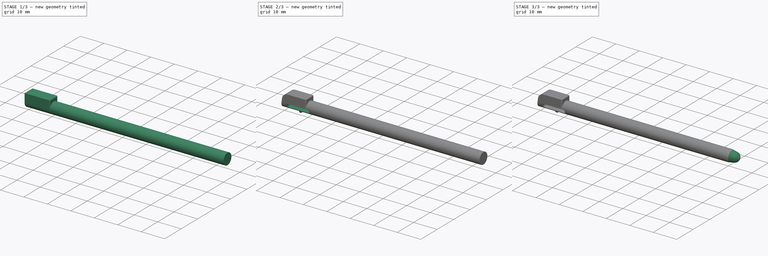
[diagram: build sequence overview — one tinted view per stage of 3, left to right]
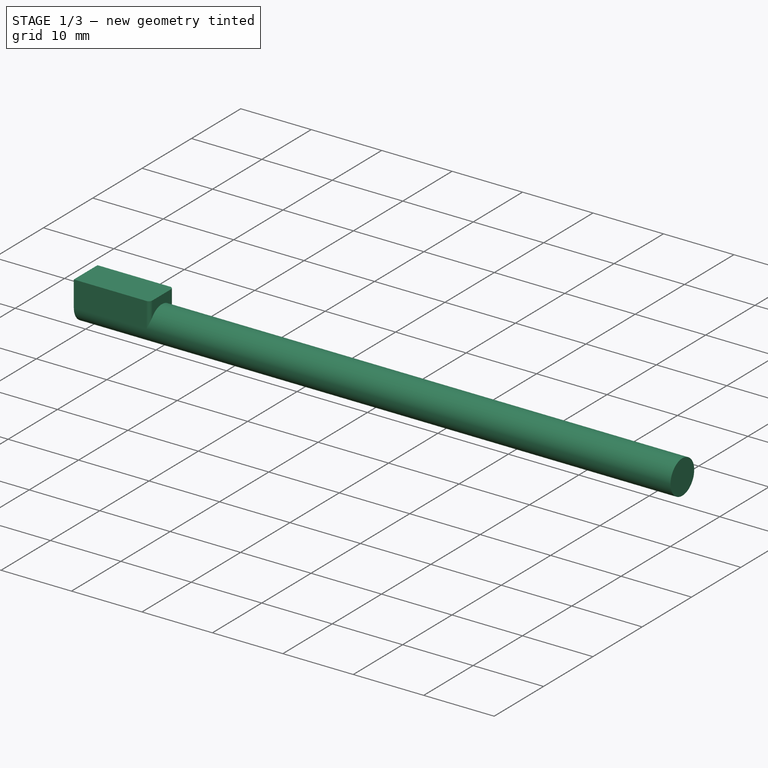
[diagram: stage 1 of 3 — iso view after this stage's code; geometry added in this stage tinted green]
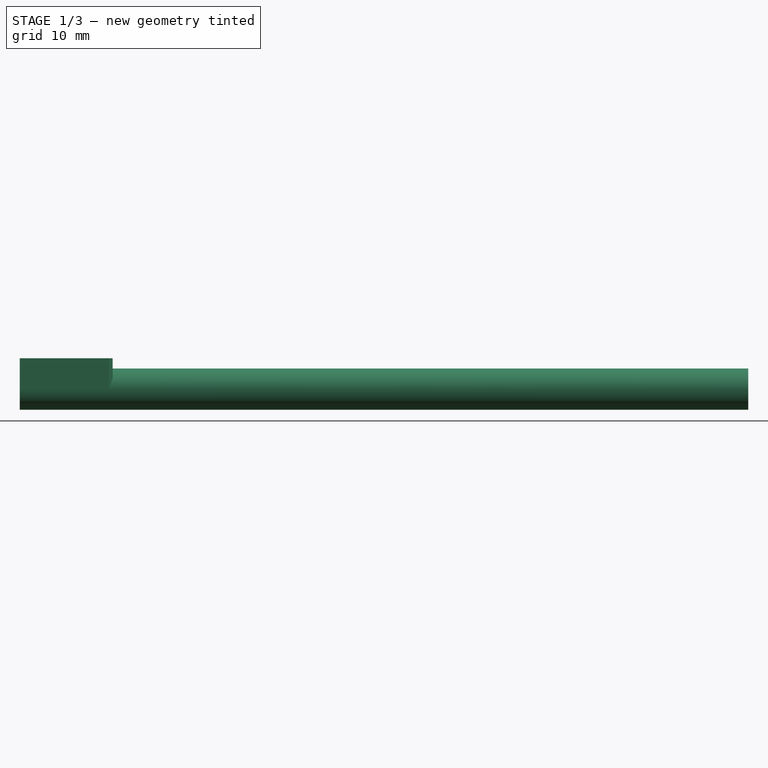
[diagram: stage 1 of 3 — front view after this stage's code; geometry added in this stage tinted green]
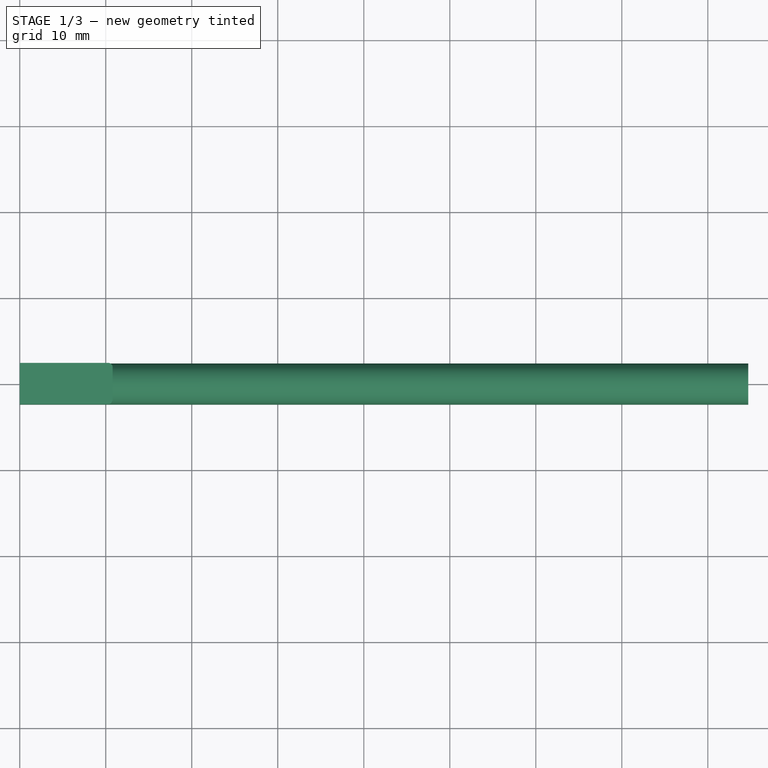
[diagram: stage 1 of 3 — top view after this stage's code; geometry added in this stage tinted green]
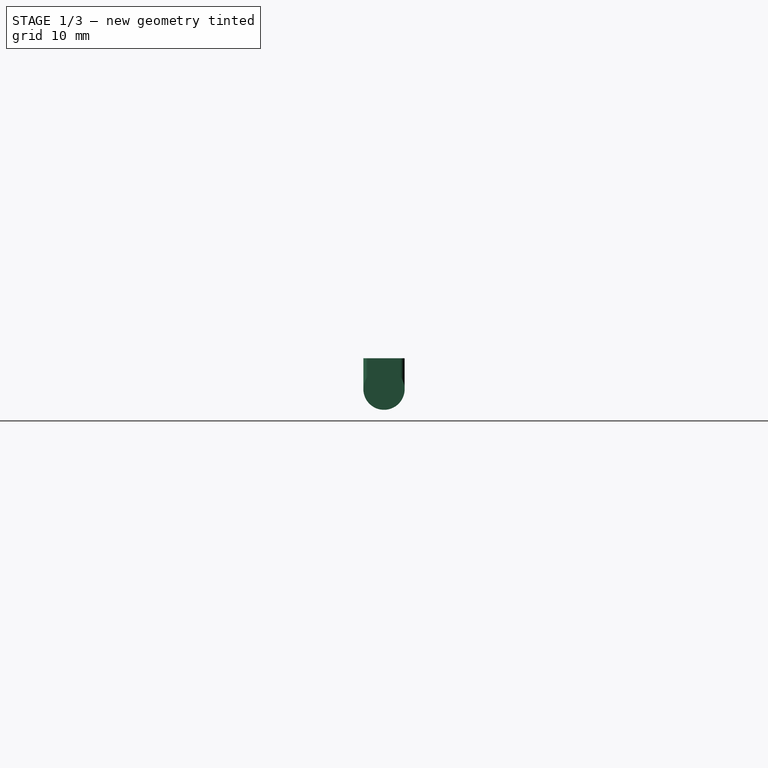
[diagram: stage 1 of 3 — right view after this stage's code; geometry added in this stage tinted green]
FCSTD DOCUMENT  (FreeCAD 1.0R39109 (Git))
Label: DSi Stylus
License: Creative Commons Attribution-NonCommercial-ShareAlike
LicenseURL: http://creativecommons.org/licenses/by-nc-sa/4.0/
objects: Sketcher::SketchObject×7, PartDesign::Pad×3, PartDesign::Pocket×3, PartDesign::Groove×1, PartDesign::Body×1
note: 36 computed .brp shape members not serialized (recipe doc carries the construction recipe); baked Part::Feature solids carry a one-line shape summary decoded from their .brp

FEATURE [Sketcher::SketchObject] Sketch
  ArcFitTolerance = 0
  AttachmentSupport = -> [YZ_Plane]
  FullyConstrained = true
  MakeInternals = false
  MapMode = 5
  Placement = pos=(0,0,0) rot=(0.57735,0.57735,0.57735;2.0944rad)
  sketch-geometry (1):
    g0: Circle CenterX=0 CenterY=0 CenterZ=0 NormalX=0 NormalY=0 NormalZ=1 AngleXU=0 Radius=2.4
  constraints (2):
    c: Coincident(g0,g-1)
    c: Diameter(g0) = 4.8
FEATURE [PartDesign::Pad] Pad
  Direction = (1,0,0)
  Length = 84.7
  Length2 = 10
  Placement = pos=(0,0,0) rot=(0.57735,0.57735,0.57735;2.0944rad)
  Profile = -> Sketch
  ReferenceAxis = -> Sketch [N_Axis]
  Suppressed = false
  Type = 0
FEATURE [Sketcher::SketchObject] Sketch001
  ArcFitTolerance = 0
  AttachmentSupport = -> [XY_Plane]
  ExternalGeometry = -> [Pad]
  FullyConstrained = true
  MakeInternals = false
  MapMode = 5
  sketch-geometry (8):
    g0: LineSegment StartX=5e-16 StartY=2.4 StartZ=0 EndX=10.3 EndY=2.4 EndZ=0
    g1: LineSegment StartX=10.8 StartY=1.9 StartZ=0 EndX=10.8 EndY=-1.9 EndZ=0
    g2: LineSegment StartX=10.3 StartY=-2.4 StartZ=0 EndX=0 EndY=-2.4 EndZ=0
    g3: LineSegment StartX=0 StartY=-2.4 StartZ=0 EndX=5e-16 EndY=2.4 EndZ=0
    g4: ArcOfCircle CenterX=10.3 CenterY=1.9 CenterZ=0 NormalX=0 NormalY=0 NormalZ=1 AngleXU=0 Radius=0.5 StartAngle=0 EndAngle=1.5708
    g5: ArcOfCircle CenterX=10.3 CenterY=-1.9 CenterZ=0 NormalX=0 NormalY=0 NormalZ=1 AngleXU=0 Radius=0.5 StartAngle=4.71239 EndAngle=6.28319
    g6: LineSegment [constr] StartX=5e-16 StartY=2.4 StartZ=0 EndX=10.8 EndY=2.4 EndZ=0
    g7: LineSegment [constr] StartX=10.8 StartY=1.9 StartZ=0 EndX=10.8 EndY=2.4 EndZ=0
  constraints (19):
    c: Coincident(g2,g3)
    c: Coincident(g3,g0)
    c: Horizontal(g0)
    c: Horizontal(g2)
    c: Vertical(g1)
    c: Coincident(g0,g-3)
    c: Coincident(g-3,g2)
    c: Tangent(g0,g4) = 1.5708
    c: Tangent(g1,g4) = 1.5708
    c: Tangent(g1,g5) = 1.5708
    c: Tangent(g2,g5) = 1.5708
    c: Coincident(g6,g0)
    c: Horizontal(g6)
    c: Coincident(g7,g1)
    c: Coincident(g7,g6)
    c: Vertical(g7)
    c: Distance(g6) = 10.8
    c: Equal(g4,g5)
    c: Radius(g4) = 0.5
FEATURE [PartDesign::Pad] Pad001
  BaseFeature = -> Pad
  Direction = (0,0,1)
  Length = 3.6
  Length2 = 10
  Placement = pos=(0,0,0) rot=(0.57735,0.57735,0.57735;2.0944rad)
  Profile = -> Sketch001
  ReferenceAxis = -> Sketch001 [N_Axis]
  Suppressed = false
  Type = 0
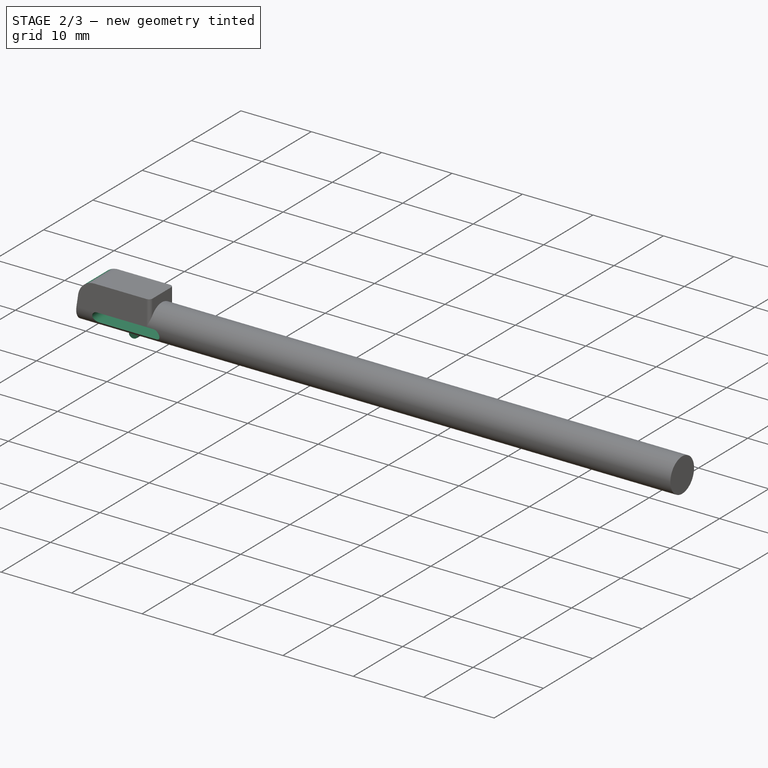
[diagram: stage 2 of 3 — iso view after this stage's code; geometry added in this stage tinted green]
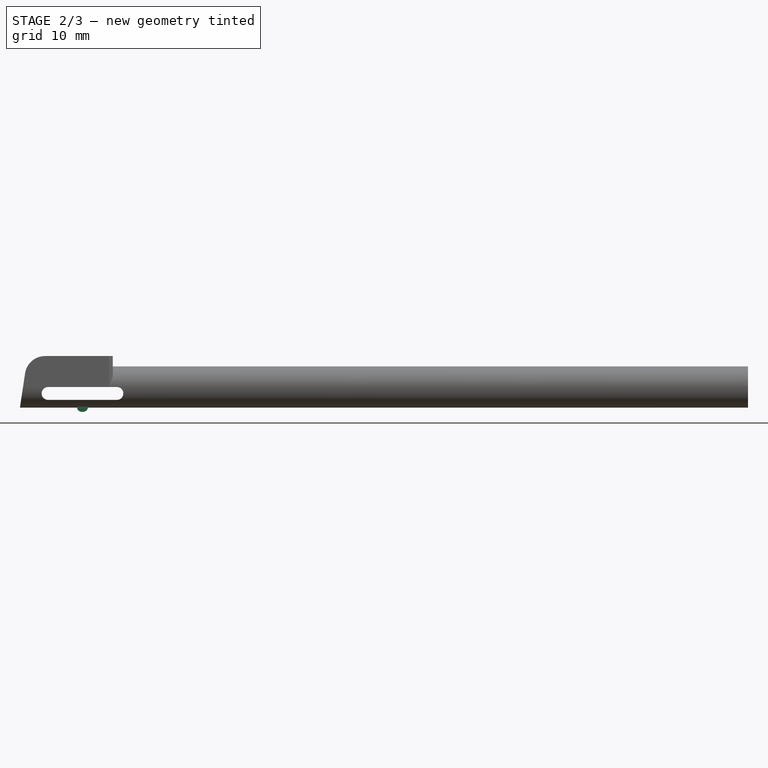
[diagram: stage 2 of 3 — front view after this stage's code; geometry added in this stage tinted green]
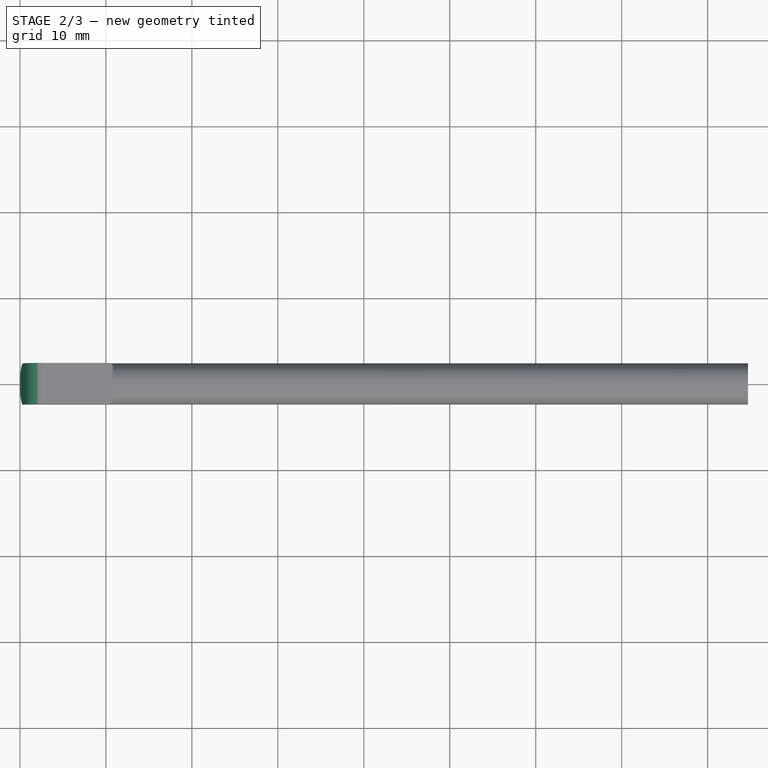
[diagram: stage 2 of 3 — top view after this stage's code; geometry added in this stage tinted green]
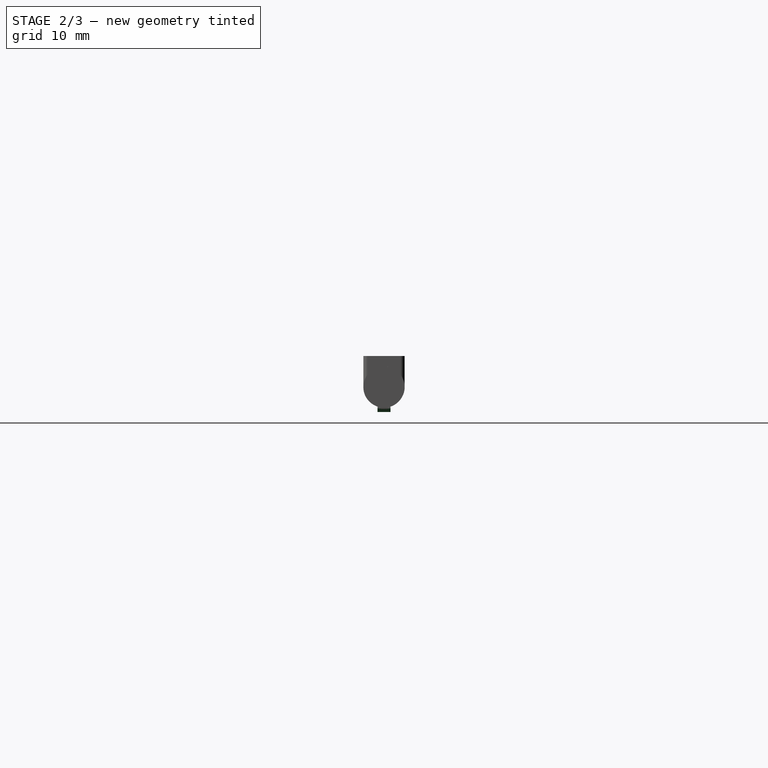
[diagram: stage 2 of 3 — right view after this stage's code; geometry added in this stage tinted green]
FEATURE [Sketcher::SketchObject] Sketch002
  ArcFitTolerance = 0
  AttachmentSupport = -> [Pad001]
  ExternalGeometry = -> [Pad001]
  FullyConstrained = true
  MakeInternals = false
  MapMode = 5
  Placement = pos=(-5e-16,-2.4,3e-16) rot=(0.57735,0.57735,-0.57735;2.0944rad)
  sketch-geometry (10):
    g0: LineSegment StartX=2.4 StartY=2.1e-15 StartZ=0 EndX=-1.6 EndY=0.6 EndZ=0
    g1: LineSegment [constr] StartX=-3.6 StartY=0 StartZ=0 EndX=-1.6 EndY=0 EndZ=0
    g2: LineSegment [constr] StartX=-1.6 StartY=0 StartZ=0 EndX=-1.6 EndY=0.6 EndZ=0
    g3: LineSegment [constr] StartX=-1.6 StartY=0.6 StartZ=0 EndX=-3.6 EndY=0.6 EndZ=0
    g4: LineSegment [constr] StartX=-3.6 StartY=0.6 StartZ=0 EndX=-3.6 EndY=0 EndZ=0
    g5: ArcOfCircle CenterX=-1.25164 CenterY=2.92237 CenterZ=0 NormalX=0 NormalY=0 NormalZ=1 AngleXU=0 Radius=2.34836 StartAngle=3.14159 EndAngle=4.5635
    g6: LineSegment StartX=-3.6 StartY=2.92237 StartZ=0 EndX=-4.6 EndY=2.92237 EndZ=0
    g7: LineSegment StartX=-4.6 StartY=2.92237 StartZ=0 EndX=-4.6 EndY=-1 EndZ=0
    g8: LineSegment StartX=-4.6 StartY=-1 StartZ=0 EndX=2.4 EndY=-1 EndZ=0
    g9: LineSegment StartX=2.4 StartY=-1 StartZ=0 EndX=2.4 EndY=2.1e-15 EndZ=0
  constraints (26):
    c: Coincident(g0,g-3)
    c: Coincident(g1,g2)
    c: Coincident(g2,g3)
    c: Coincident(g3,g4)
    c: Coincident(g4,g1)
    c: Horizontal(g1)
    c: Horizontal(g3)
    c: Vertical(g2)
    c: Vertical(g4)
    c: Coincident(g1,g-4)
    c: Coincident(g0,g2)
    c: Tangent(g5,g-4) = -1.5708
    c: Tangent(g5,g0) = 1.5708
    c: Distance(g4) = 0.6
    c: Distance(g1) = 2
    c: Coincident(g6,g5)
    c: Horizontal(g6)
    c: Coincident(g7,g6)
    c: Vertical(g7)
    c: Coincident(g8,g7)
    c: Horizontal(g8)
    c: Coincident(g9,g8)
    c: Coincident(g9,g0)
    c: Vertical(g9)
    c: Distance(g6) = 1
    c: Equal(g6,g9)
FEATURE [PartDesign::Pocket] Pocket
  BaseFeature = -> Pad001
  Direction = (0,1,0)
  Length = 5
  Length2 = 5
  Placement = pos=(0,0,0) rot=(0.57735,0.57735,0.57735;2.0944rad)
  Profile = -> Sketch002
  ReferenceAxis = -> Sketch002 [N_Axis]
  Suppressed = false
  Type = 0
FEATURE [Sketcher::SketchObject] Sketch003
  ArcFitTolerance = 0
  AttachmentSupport = -> [XZ_Plane]
  ExternalGeometry = -> [Pocket]
  FullyConstrained = true
  MakeInternals = false
  MapMode = 5
  Placement = pos=(0,0,0) rot=(1,0,0;1.5708rad)
  sketch-geometry (9):
    g0: LineSegment [constr] StartX=0 StartY=0 StartZ=0 EndX=7.9 EndY=0 EndZ=0
    g1: LineSegment [constr] StartX=7.9 StartY=0 StartZ=0 EndX=7.9 EndY=-2.4 EndZ=0
    g2: LineSegment [constr] StartX=7.9 StartY=-2.4 StartZ=0 EndX=6.65 EndY=-2.4 EndZ=0
    g3: LineSegment [constr] StartX=6.65 StartY=-2.4 StartZ=0 EndX=0 EndY=-2.4 EndZ=0
    g4: Ellipse CenterX=7.275 CenterY=-2.4 CenterZ=0 NormalX=0 NormalY=0 NormalZ=1 MajorRadius=0.625 MinorRadius=0.5 AngleXU=1.2e-15
    g5: LineSegment [constr] StartX=7.9 StartY=-2.4 StartZ=0 EndX=6.65 EndY=-2.4 EndZ=0
    g6: LineSegment [constr] StartX=7.275 StartY=-1.9 StartZ=0 EndX=7.275 EndY=-2.9 EndZ=0
    g7: GeomPoint [constr] X=7.65 Y=-2.4 Z=0
    g8: GeomPoint [constr] X=6.9 Y=-2.4 Z=0
  constraints (15):
    c: Coincident(g0,g-1)
    c: PointOnObject(g0,g-1)
    c: Coincident(g1,g0)
    c: Vertical(g1)
    c: Coincident(g2,g1)
    c: Horizontal(g2)
    c: Coincident(g3,g2)
    c: Coincident(g3,g-3)
    c: Horizontal(g3)
    c: InternalAlignment(g5-g8 -> g4) x4
    c: Distance(g6) = 1
    c: Symmetric(g2,g1,g4)
    c: Coincident(g5,g1)
    c: Distance(g2) = 1.25
    c: Distance(g0) = 7.9
FEATURE [PartDesign::Pad] Pad002
  BaseFeature = -> Pocket
  Direction = (0,-1,2e-16)
  Length = 0.75
  Length2 = 0.75
  Placement = pos=(0,0,0) rot=(0.57735,0.57735,0.57735;2.0944rad)
  Profile = -> Sketch003
  ReferenceAxis = -> Sketch003 [N_Axis]
  Suppressed = false
  Type = 4
FEATURE [Sketcher::SketchObject] Sketch004
  ArcFitTolerance = 0
  AttachmentSupport = -> [Pad002]
  ExternalGeometry = -> [Pad002]
  FullyConstrained = true
  MakeInternals = false
  MapMode = 5
  Placement = pos=(-5e-16,-2.4,1.9e-15) rot=(0.57735,0.57735,-0.57735;2.0944rad)
  sketch-geometry (6):
    g0: ArcOfCircle CenterX=0.75 CenterY=3.275 CenterZ=0 NormalX=0 NormalY=0 NormalZ=1 AngleXU=0 Radius=0.75 StartAngle=3.14159 EndAngle=6.28319
    g1: ArcOfCircle CenterX=0.75 CenterY=11.275 CenterZ=0 NormalX=0 NormalY=0 NormalZ=1 AngleXU=0 Radius=0.75 StartAngle=-5.68e-14 EndAngle=3.14159
    g2: LineSegment StartX=1.5 StartY=3.275 StartZ=0 EndX=1.5 EndY=11.275 EndZ=0
    g3: LineSegment StartX=-1.2e-15 StartY=11.275 StartZ=0 EndX=-1.1e-15 EndY=3.275 EndZ=0
    g4: LineSegment [constr] StartX=2.4 StartY=7.275 StartZ=0 EndX=1.5 EndY=7.275 EndZ=0
    g5: LineSegment [constr] StartX=-1.1e-15 StartY=3.275 StartZ=0 EndX=1.5 EndY=3.275 EndZ=0
  constraints (14):
    c: Tangent(g0,g2) = -1.5708
    c: Tangent(g2,g1) = -1.5708
    c: Tangent(g1,g3) = -1.5708
    c: Tangent(g3,g0) = -1.5708
    c: Equal(g0,g1)
    c: Vertical(g2)
    c: Coincident(g4,g-4)
    c: Horizontal(g4)
    c: Symmetric(g1,g0,g4)
    c: PointOnObject(g0,g-3)
    c: Coincident(g5,g0)
    c: Coincident(g5,g0)
    c: Distance(g5) = 1.5
    c: Distance(g2) = 8
FEATURE [PartDesign::Pocket] Pocket001
  BaseFeature = -> Pad002
  Direction = (0,1,0)
  Length = 10
  Length2 = 5
  Placement = pos=(0,0,0) rot=(0.57735,0.57735,0.57735;2.0944rad)
  Profile = -> Sketch004
  ReferenceAxis = -> Sketch004 [N_Axis]
  Suppressed = false
  Type = 0
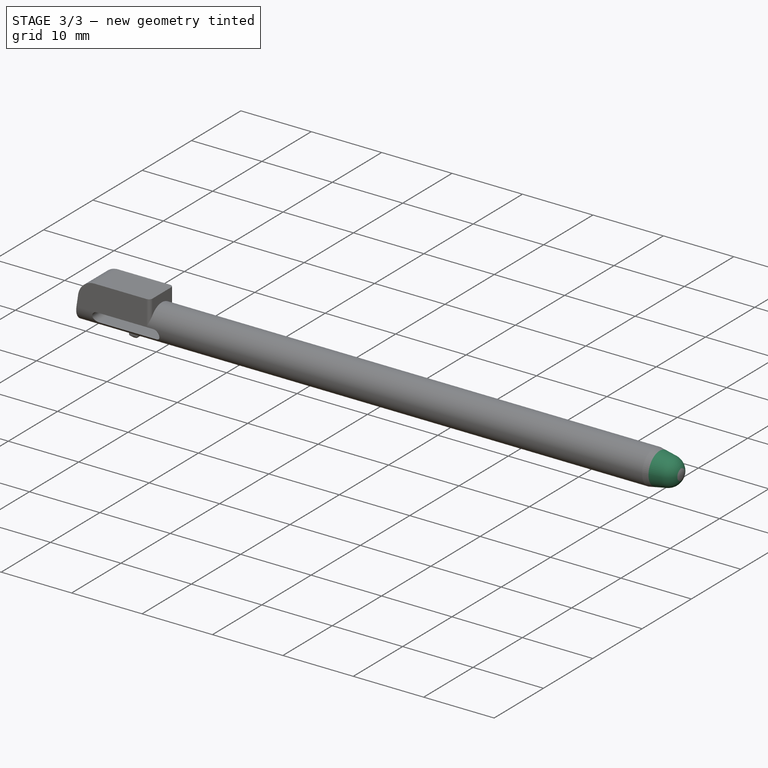
[diagram: stage 3 of 3 — iso view after this stage's code; geometry added in this stage tinted green]
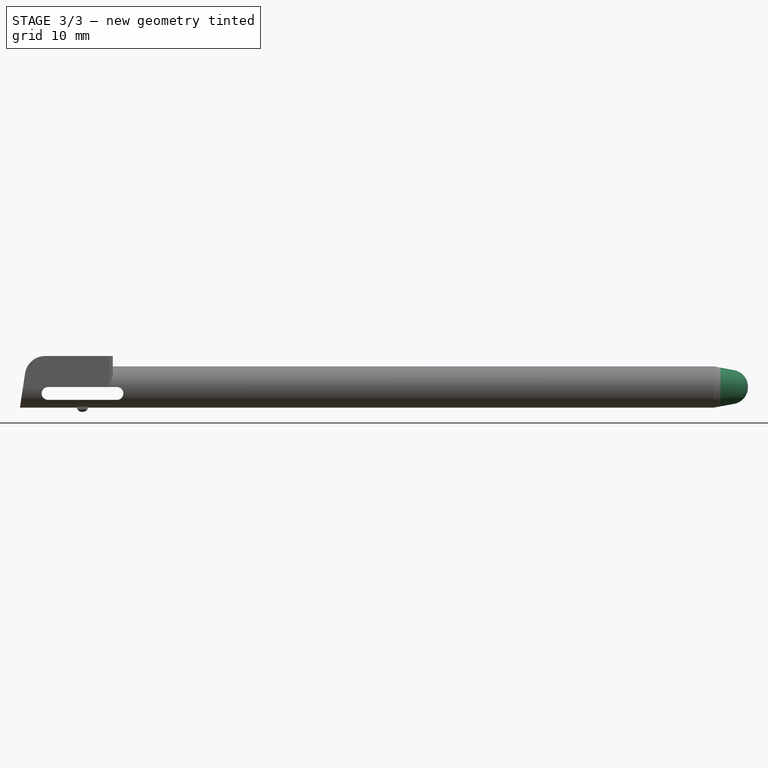
[diagram: stage 3 of 3 — front view after this stage's code; geometry added in this stage tinted green]
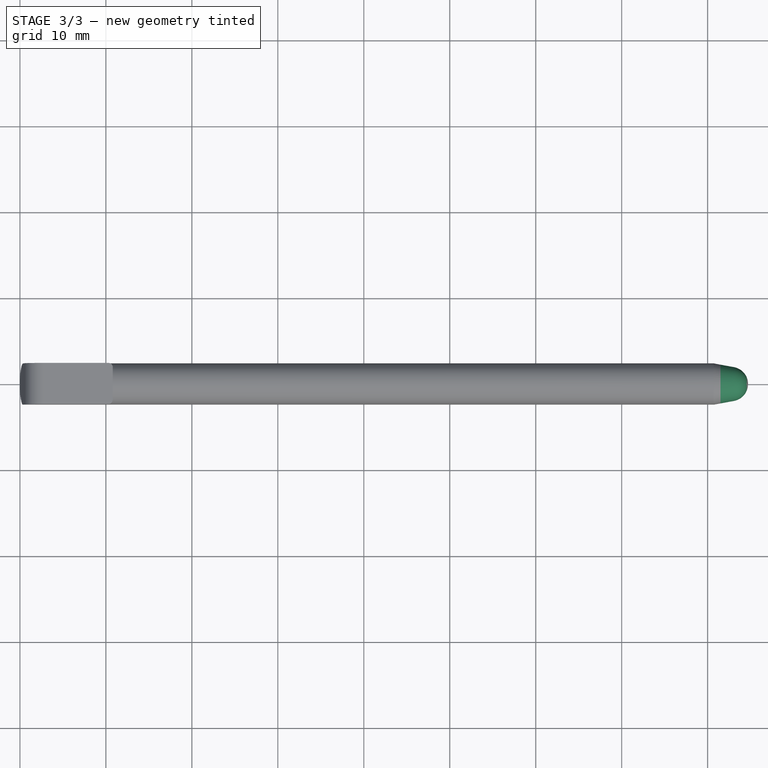
[diagram: stage 3 of 3 — top view after this stage's code; geometry added in this stage tinted green]
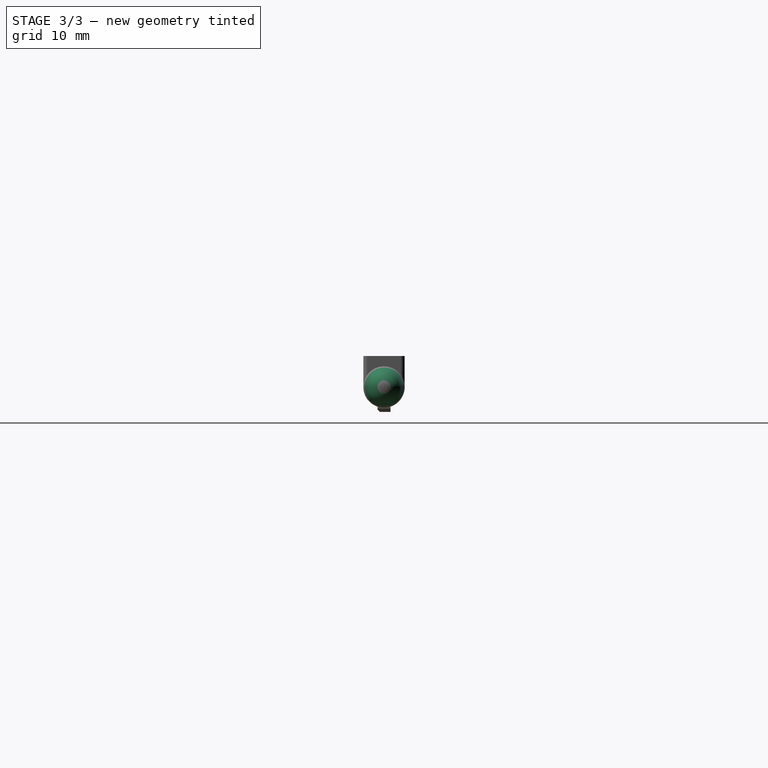
[diagram: stage 3 of 3 — right view after this stage's code; geometry added in this stage tinted green]
FEATURE [Sketcher::SketchObject] Sketch005
  ArcFitTolerance = 0
  AttachmentSupport = -> [XZ_Plane]
  ExternalGeometry = -> [Pocket001]
  FullyConstrained = true
  MakeInternals = false
  MapMode = 5
  Placement = pos=(0,0,0) rot=(1,0,0;1.5708rad)
  sketch-geometry (6):
    g0: ArcOfCircle CenterX=82.7 CenterY=5.0452e-07 CenterZ=0 NormalX=0 NormalY=0 NormalZ=1 AngleXU=0 Radius=2 StartAngle=6.28319 EndAngle=7.67266
    g1: LineSegment StartX=83.0607 StartY=1.96721 StartZ=0 EndX=80.7 EndY=2.4 EndZ=0
    g2: LineSegment StartX=80.7 StartY=2.4 StartZ=0 EndX=84.7 EndY=2.4 EndZ=0
    g3: LineSegment StartX=84.7 StartY=2.4 StartZ=0 EndX=85.7 EndY=2.4 EndZ=0
    g4: LineSegment StartX=85.7 StartY=2.4 StartZ=0 EndX=85.7 EndY=7.02e-14 EndZ=0
    g5: LineSegment StartX=85.7 StartY=7.01e-14 StartZ=0 EndX=84.7 EndY=7.01e-14 EndZ=0
  constraints (16):
    c: Symmetric(g-3,g-3,g0)
    c: Tangent(g0,g-3)
    c: Coincident(g2,g1)
    c: Coincident(g2,g-3)
    c: Horizontal(g2)
    c: Tangent(g1,g0) = -1.5708
    c: Distance(g2) = 4
    c: Diameter(g0) = 4
    c: Coincident(g3,g2)
    c: Horizontal(g3)
    c: Coincident(g4,g3)
    c: Vertical(g4)
    c: Coincident(g5,g4)
    c: Coincident(g5,g0)
    c: Horizontal(g5)
    c: Distance(g3) = 1
FEATURE [PartDesign::Groove] Groove
  Angle = 360
  Angle2 = 60
  Axis = (1,0,0)
  Base = (0,0,0)
  BaseFeature = -> Pocket001
  Placement = pos=(0,0,0) rot=(0.57735,0.57735,0.57735;2.0944rad)
  Profile = -> Sketch005
  ReferenceAxis = -> Sketch005 [H_Axis]
  Refine = true
  Reversed = true
  Suppressed = false
  Type = 0
FEATURE [Sketcher::SketchObject] Sketch006
  ArcFitTolerance = 0
  AttachmentSupport = -> [YZ_Plane]
  ExternalGeometry = -> [Groove]
  FullyConstrained = true
  MakeInternals = false
  MapMode = 5
  Placement = pos=(0,0,0) rot=(0.57735,0.57735,0.57735;2.0944rad)
  sketch-geometry (7):
    g0: LineSegment [constr] StartX=0.75 StartY=-2.9 StartZ=0 EndX=-0.75 EndY=-2.9 EndZ=0
    g1: LineSegment [constr] StartX=-1.53673 StartY=-1.84349 StartZ=0 EndX=-0.75 EndY=-2.61917 EndZ=0
    g2: LineSegment [constr] StartX=-0.75 StartY=-2.61917 StartZ=0 EndX=-0.465163 EndY=-2.9 EndZ=0
    g3: LineSegment [constr] StartX=-1.53673 StartY=-1.84349 StartZ=0 EndX=-1.82156 EndY=-1.56266 EndZ=0
    g4: LineSegment StartX=-1.82156 StartY=-1.56266 StartZ=0 EndX=-1.82156 EndY=-2.9 EndZ=0
    g5: LineSegment StartX=-1.82156 StartY=-2.9 StartZ=0 EndX=-0.465163 EndY=-2.9 EndZ=0
    g6: LineSegment StartX=-0.465163 StartY=-2.9 StartZ=0 EndX=-1.82156 EndY=-1.56266 EndZ=0
  constraints (19):
    c: Coincident(g0,g-5)
    c: Coincident(g0,g-4)
    c: PointOnObject(g1,g-3)
    c: PointOnObject(g1,g-4)
    c: Coincident(g2,g1)
    c: PointOnObject(g2,g0)
    c: Parallel(g1,g2)
    c: Distance(g2) = 0.4
    c: Coincident(g3,g1)
    c: PointOnObject(g3,g-3)
    c: Distance(g3) = 0.4
    c: Parallel(g3,g1)
    c: Coincident(g4,g3)
    c: Vertical(g4)
    c: Coincident(g5,g4)
    c: Coincident(g5,g2)
    c: Horizontal(g5)
    c: Coincident(g6,g5)
    c: Coincident(g6,g4)
FEATURE [PartDesign::Pocket] Pocket002
  BaseFeature = -> Groove
  Direction = (-1,0,0)
  Length = 100
  Length2 = 100
  Placement = pos=(0,0,0) rot=(0.57735,0.57735,0.57735;2.0944rad)
  Profile = -> Sketch006
  ReferenceAxis = -> Sketch006 [N_Axis]
  Suppressed = false
  Type = 4
FEATURE [PartDesign::Body] Body  label="Nintendo DSi Stylus"
  AllowCompound = false
  Group = -> [Sketch,Pad,Sketch001,Pad001,Sketch002,Pocket,Sketch003,Pad002,Sketch004,Pocket001,Sketch005,Groove,Sketch006,Pocket002]
  Origin = -> Origin
  Placement = pos=(0,0,0) rot=(1,0,0;0.778242rad)
  Tip = -> Pocket002
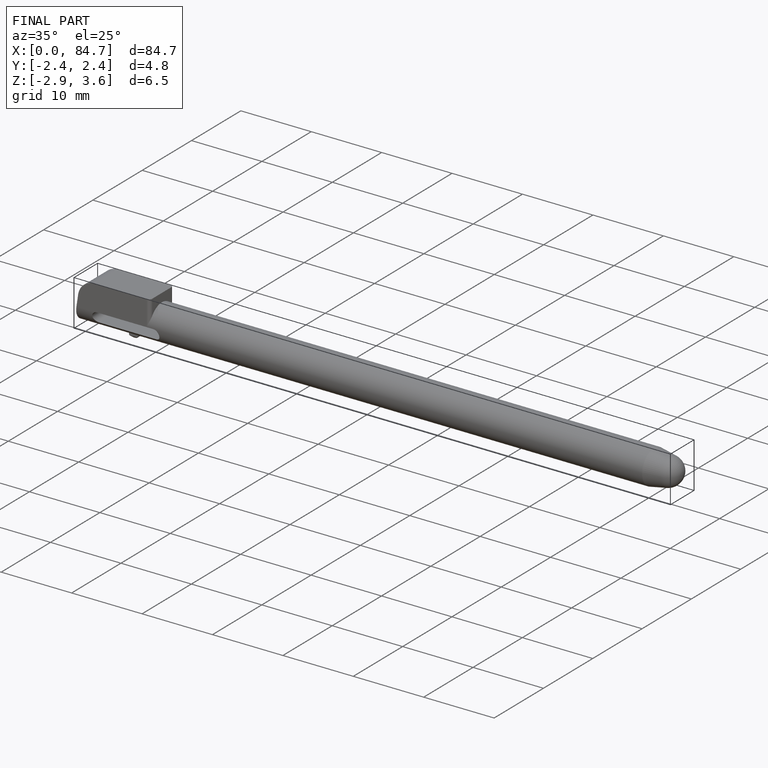
[diagram: finished part — iso view with bounding-box wireframe]
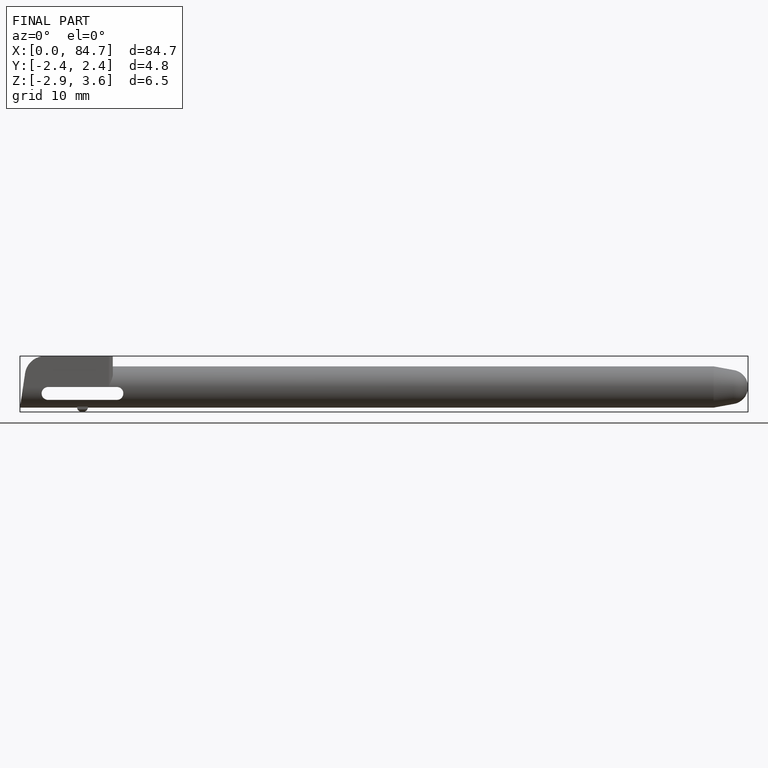
[diagram: finished part — front view with bounding-box wireframe]
